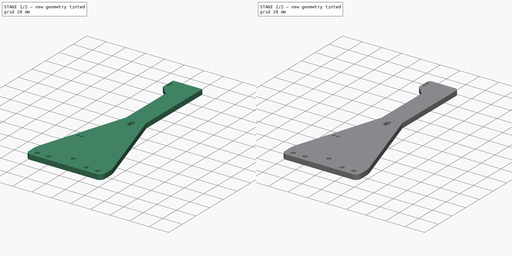
[diagram: build sequence overview — one tinted view per stage of 2, left to right]
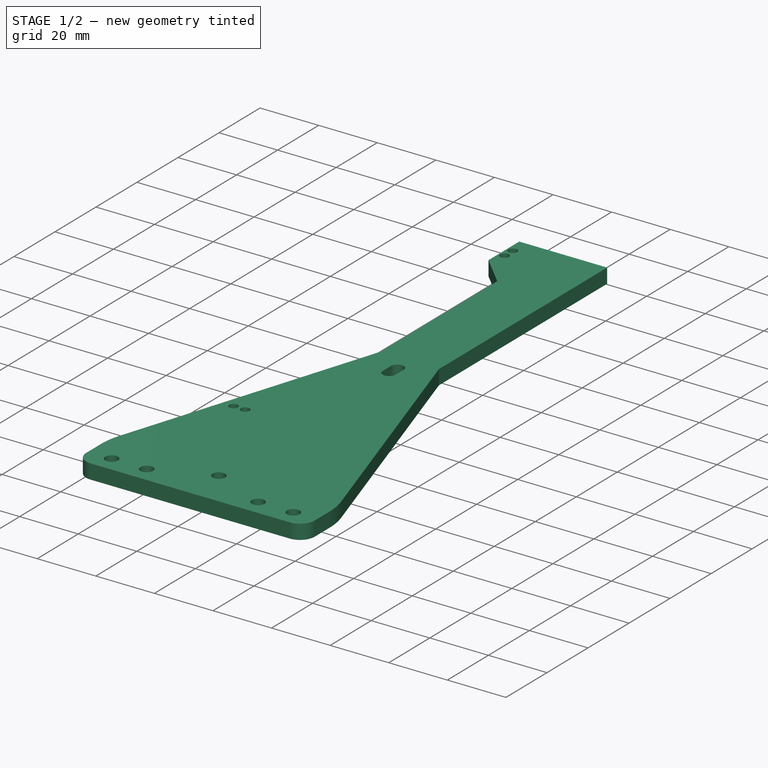
[diagram: stage 1 of 2 — iso view after this stage's code; geometry added in this stage tinted green]
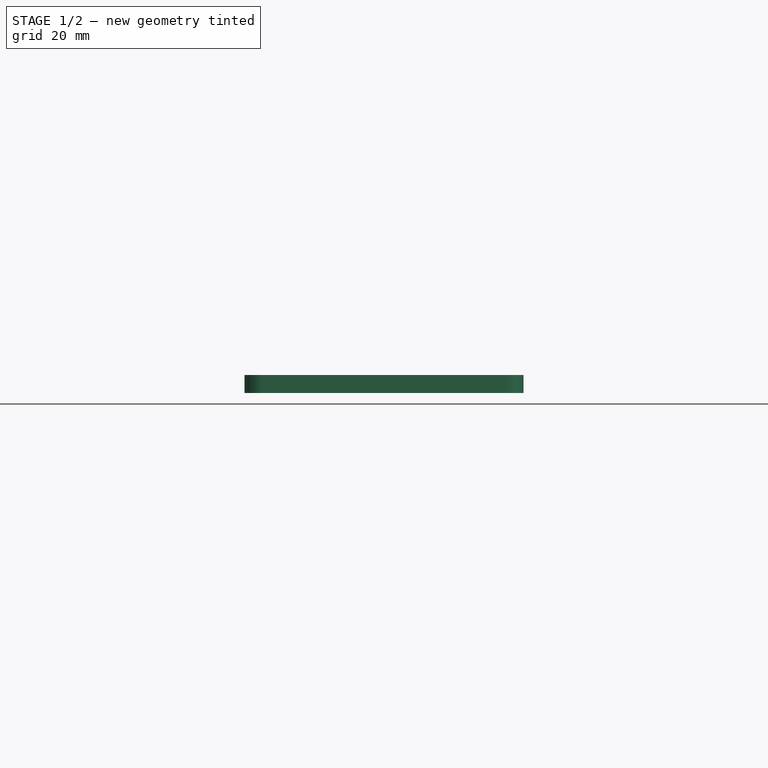
[diagram: stage 1 of 2 — front view after this stage's code; geometry added in this stage tinted green]
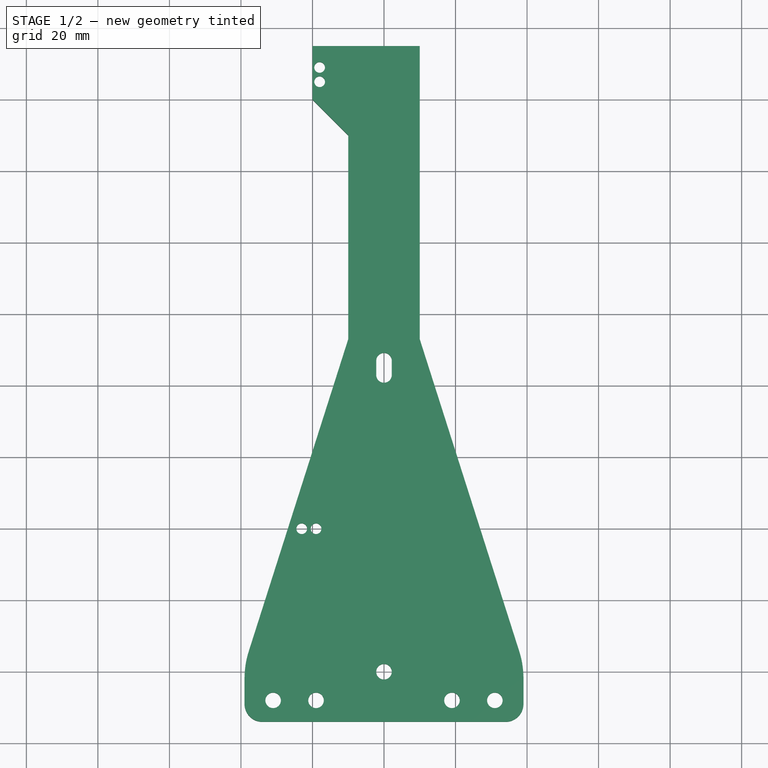
[diagram: stage 1 of 2 — top view after this stage's code; geometry added in this stage tinted green]
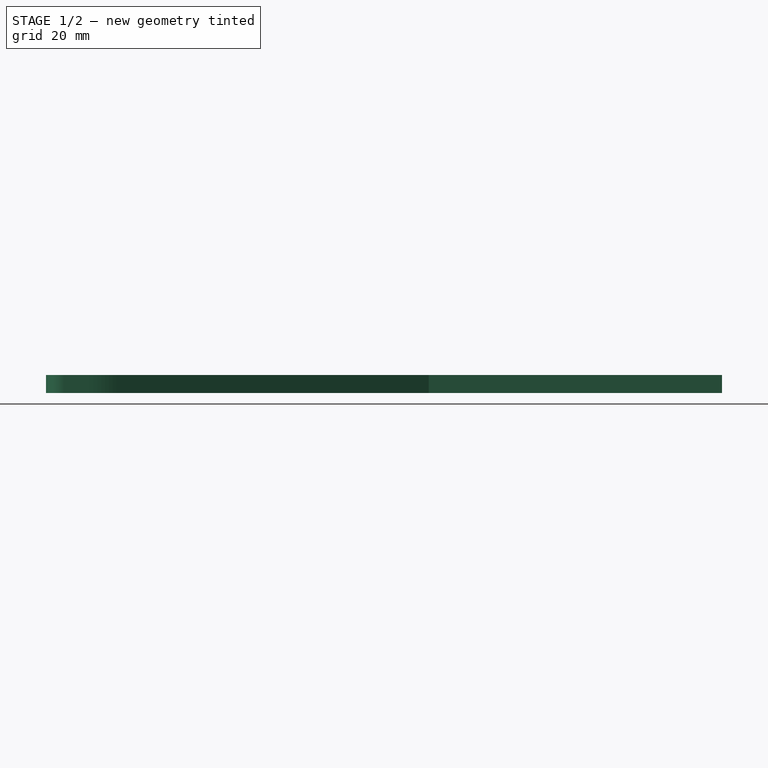
[diagram: stage 1 of 2 — right view after this stage's code; geometry added in this stage tinted green]
FCSTD DOCUMENT  (FreeCAD 1.1R42987 (Git))
Label: SlidesPlate
License: All rights reserved
LicenseURL: https://en.wikipedia.org/wiki/All_rights_reserved
objects: App::Point×1, Sketcher::SketchObject×1, PartDesign::Pad×1, PartDesign::Fillet×1, PartDesign::Body×1
note: 9 computed .brp shape members not serialized (recipe doc carries the construction recipe); baked Part::Feature solids carry a one-line shape summary decoded from their .brp
EXTERNAL_REF file=../Variables.FCStd obj=Spreadsheet

FEATURE [App::Point] Origin001
  Role = Origin
FEATURE [Sketcher::SketchObject] Sketch
  ArcFitTolerance = 1e-06
  AttachmentSupport = -> [XY_Plane]
  ExternalTypes = [0]
  FullyConstrained = true
  MakeInternals = false
  MapMode = 5
  expr: Constraints[10] = Variables#Spreadsheet.M4ThroughBoreDiam / 2
  expr: Constraints[18] = Variables#Spreadsheet.PassiveClawMountX
  expr: Constraints[23] = Variables#Spreadsheet.PassiveClawMountY
  expr: Constraints[24] = Variables#Spreadsheet.ClawHeight
  expr: Constraints[26] = Variables#Spreadsheet.PassiveClawMountOffset
  sketch-geometry (45):
    g0: LineSegment [constr] StartX=2.5e-15 StartY=7.48e-14 StartZ=0 EndX=-2.5e-15 EndY=85 EndZ=0
    g1: ArcOfCircle CenterX=-1.106e-13 CenterY=87 CenterZ=0 NormalX=0 NormalY=0 NormalZ=1 AngleXU=0 Radius=2.175 StartAngle=2.2e-15 EndAngle=3.14159
    g2: ArcOfCircle CenterX=3.214e-13 CenterY=83 CenterZ=0 NormalX=0 NormalY=0 NormalZ=1 AngleXU=0 Radius=2.175 StartAngle=3.14159 EndAngle=6.28319
    g3: LineSegment StartX=2.175 StartY=83 StartZ=0 EndX=2.175 EndY=87 EndZ=0
    g4: LineSegment StartX=-2.175 StartY=87 StartZ=0 EndX=-2.175 EndY=83 EndZ=0
    g5: Circle CenterX=2.5e-15 CenterY=7.48e-14 CenterZ=0 NormalX=0 NormalY=0 NormalZ=1 AngleXU=0 Radius=2.175
    g6: Circle CenterX=19 CenterY=-8 CenterZ=0 NormalX=0 NormalY=0 NormalZ=1 AngleXU=0 Radius=2.175
    g7: LineSegment [constr] StartX=19 StartY=-8 StartZ=0 EndX=31 EndY=-8 EndZ=0
    g8: Circle CenterX=31 CenterY=-8 CenterZ=0 NormalX=0 NormalY=0 NormalZ=1 AngleXU=0 Radius=2.175
    g9: GeomPoint X=25 Y=-14 Z=0
    g10: GeomPoint X=25 Y=-8 Z=0
    g11: GeomPoint X=25 Y=-25 Z=0
    g12: LineSegment StartX=-34 StartY=-14 StartZ=0 EndX=34 EndY=-14 EndZ=0
    g13: GeomPoint X=-1e-16 Y=-14 Z=0
    g14: LineSegment StartX=39 StartY=-9 StartZ=0 EndX=39 EndY=-1.88721 EndZ=0
    g15: GeomPoint X=1.9e-15 Y=93 Z=0
    g16: LineSegment StartX=10 StartY=93 StartZ=0 EndX=37.8197 EndY=5.70369 EndZ=0
    g17: LineSegment StartX=-39 StartY=-9 StartZ=0 EndX=-39 EndY=-1.88721 EndZ=0
    g18: LineSegment StartX=-37.8197 StartY=5.70369 StartZ=0 EndX=-10 EndY=93 EndZ=0
    g19: Circle CenterX=-19 CenterY=-8 CenterZ=0 NormalX=0 NormalY=0 NormalZ=1 AngleXU=0 Radius=2.175
    g20: Circle CenterX=-31 CenterY=-8 CenterZ=0 NormalX=0 NormalY=0 NormalZ=1 AngleXU=0 Radius=2.175
    g21: LineSegment [constr] StartX=-31 StartY=-8 StartZ=0 EndX=-19 EndY=-8 EndZ=0
    g22: LineSegment [constr] StartX=-19 StartY=-8 StartZ=0 EndX=19 EndY=-8 EndZ=0
    g23: GeomPoint [constr] X=3e-15 Y=-8 Z=0
    g24: ArcOfCircle CenterX=-34 CenterY=-9 CenterZ=0 NormalX=0 NormalY=0 NormalZ=1 AngleXU=0 Radius=5 StartAngle=3.14159 EndAngle=4.71239
    g25: GeomPoint [constr] X=-39 Y=-14 Z=0
    g26: ArcOfCircle CenterX=34 CenterY=-9 CenterZ=0 NormalX=0 NormalY=0 NormalZ=1 AngleXU=0 Radius=5 StartAngle=4.71239 EndAngle=6.28319
    g27: GeomPoint [constr] X=39 Y=-14 Z=0
    g28: ArcOfCircle CenterX=-14 CenterY=-1.88721 CenterZ=0 NormalX=0 NormalY=0 NormalZ=1 AngleXU=0 Radius=25 StartAngle=2.83309 EndAngle=3.14159
    g29: GeomPoint [constr] X=-39 Y=2 Z=0
    g30: ArcOfCircle CenterX=14 CenterY=-1.88721 CenterZ=0 NormalX=0 NormalY=0 NormalZ=1 AngleXU=0 Radius=25 StartAngle=4.72e-14 EndAngle=0.308506
    g31: GeomPoint [constr] X=39 Y=2 Z=0
    g32: Circle CenterX=-19 CenterY=40 CenterZ=0 NormalX=0 NormalY=0 NormalZ=1 AngleXU=0 Radius=1.5
    g33: Circle CenterX=-23 CenterY=40 CenterZ=0 NormalX=0 NormalY=0 NormalZ=1 AngleXU=0 Radius=1.5
    g34: LineSegment [constr] StartX=-23 StartY=40 StartZ=0 EndX=-19 EndY=40 EndZ=0
    g35: LineSegment StartX=10 StartY=93 StartZ=0 EndX=10 EndY=175 EndZ=0
    g36: LineSegment StartX=-10 StartY=93 StartZ=0 EndX=-10 EndY=150 EndZ=0
    g37: LineSegment StartX=-10 StartY=175 StartZ=0 EndX=10 EndY=175 EndZ=0
    g38: LineSegment [constr] StartX=2.5e-15 StartY=7.48e-14 StartZ=0 EndX=-7.6e-15 EndY=170 EndZ=0
    g39: LineSegment [constr] StartX=-18 StartY=165 StartZ=0 EndX=-18 EndY=169 EndZ=0
    g40: Circle CenterX=-18 CenterY=165 CenterZ=0 NormalX=0 NormalY=0 NormalZ=1 AngleXU=0 Radius=1.5
    g41: Circle CenterX=-18 CenterY=169 CenterZ=0 NormalX=0 NormalY=0 NormalZ=1 AngleXU=0 Radius=1.5
    g42: LineSegment StartX=-10 StartY=175 StartZ=0 EndX=-20 EndY=175 EndZ=0
    g43: LineSegment StartX=-20 StartY=175 StartZ=0 EndX=-20 EndY=160 EndZ=0
    g44: LineSegment StartX=-20 StartY=160 StartZ=0 EndX=-10 EndY=150 EndZ=0
  constraints (108):
    c: Coincident(g0,g-1)
    c: PointOnObject(g0,g-2)
    c: PointOnObject(g1,g0)
    c: Vertical(g3)
    c: Tangent(g3,g1) = -1.5708
    c: Tangent(g4,g1) = -1.5708
    c: Coincident(g3,g2)
    c: Tangent(g4,g2) = -1.5708
    c: Equal(g2,g1)
    c: DistanceY(g2,g1) = 4
    c: Radius(g1) = 2.175
    c: Symmetric(g1,g2,g0)
    c: DistanceY(g0,g0) = 85
    c: Coincident(g5,g0)
    c: Equal(g5,g2)
    c: Equal(g5,g6)
    c: Coincident(g7,g6)
    c: Horizontal(g7)
    c: DistanceX(g7,g7) = 12
    c: Coincident(g8,g7)
    c: Equal(g6,g8)
    c: Symmetric(g7,g7,g10)
    c: Vertical(g9,g10)
    c: Distance(g9,g7) = 6
    c: DistanceY(g11,g9) = 11
    c: Vertical(g11,g9)
    c: DistanceY(g11,g-1) = 25
    c: DistanceX(g-1,g11) = 25
    c: Horizontal(g12)
    c: Symmetric(g25,g27,g13)
    c: PointOnObject(g13,g-2)
    c: DistanceX(g7,g27) = 8
    c: Vertical(g14)
    c: DistanceY(g7,g31) = 10
    c: DistanceX(g18,g16) = 20
    c: Symmetric(g18,g16,g15)
    c: PointOnObject(g15,g-2)
    c: Vertical(g17)
    c: Horizontal(g20,g19)
    c: Equal(g19,g6)
    c: Equal(g19,g20)
    c: Coincident(g21,g20)
    c: Coincident(g21,g19)
    c: Horizontal(g19,g6)
    c: Equal(g7,g21)
    c: Coincident(g22,g19)
    c: Coincident(g22,g6)
    c: Symmetric(g22,g22,g23)
    c: PointOnObject(g23,g0)
    c: PointOnObject(g25,g17)
    c: PointOnObject(g25,g12)
    c: Tangent(g17,g24) = 1.5708
    c: Tangent(g12,g24) = -1.5708
    c: PointOnObject(g27,g12)
    c: PointOnObject(g27,g14)
    c: Tangent(g12,g26) = -1.5708
    c: Tangent(g14,g26) = -1.5708
    c: PointOnObject(g29,g17)
    c: PointOnObject(g29,g18)
    c: Tangent(g17,g28) = 1.5708
    c: Tangent(g18,g28) = 1.5708
    c: PointOnObject(g31,g16)
    c: PointOnObject(g31,g14)
    c: Tangent(g16,g30) = 1.5708
    c: Tangent(g14,g30) = -1.5708
    c: Radius(g24) = 5
    c: Equal(g24,g26)
    c: Radius(g28) = 25
    c: Equal(g28,g30)
    c: Horizontal(g28,g30)
    c: Distance(g6,g12) = 6
    c: DistanceX(g29,g32) = 20
    c: Distance(g32,g-1) = 40
    c: Diameter(g32) = 3
    c: Equal(g33,g32)
    c: Horizontal(g33,g32)
    c: Coincident(g34,g33)
    c: Coincident(g34,g32)
    c: DistanceX(g34,g34) = 4
    c: Coincident(g35,g16)
    c: Vertical(g35)
    c: Coincident(g36,g18)
    c: Coincident(g37,g35)
    c: Horizontal(g37)
    c: Horizontal(g18,g16)
    c: DistanceY(g0,g15) = 8
    c: Coincident(g38,g0)
    c: Symmetric(g38,g0,g0)
    c: Distance(g38,g37) = 5
    c: Diameter(g40) = 3
    c: Coincident(g40,g39)
    c: Coincident(g41,g39)
    c: Equal(g41,g40)
    c: Distance(g39,g37) = 6
    c: Distance(g39,g39) = 4
    c: Vertical(g39)
    c: Horizontal(g42)
    c: Coincident(g43,g42)
    c: Vertical(g43)
    c: Coincident(g44,g43)
    c: Angle(g44,g43) = 2.35619
    c: DistanceX(g42,g42) = 10
    c: DistanceY(g43,g43) = 15
    c: Vertical(g36)
    c: Coincident(g44,g36)
    c: Distance(g39,g43) = 2
    c: Coincident(g42,g37)
    c: Vertical(g36,g37)
FEATURE [PartDesign::Pad] Pad
  Direction = (0,0,1)
  Length = 5
  Length2 = 10
  Profile = -> Sketch
  ReferenceAxis = -> Sketch [N_Axis]
  Refine = true
  Suppressed = false
  Type = 0
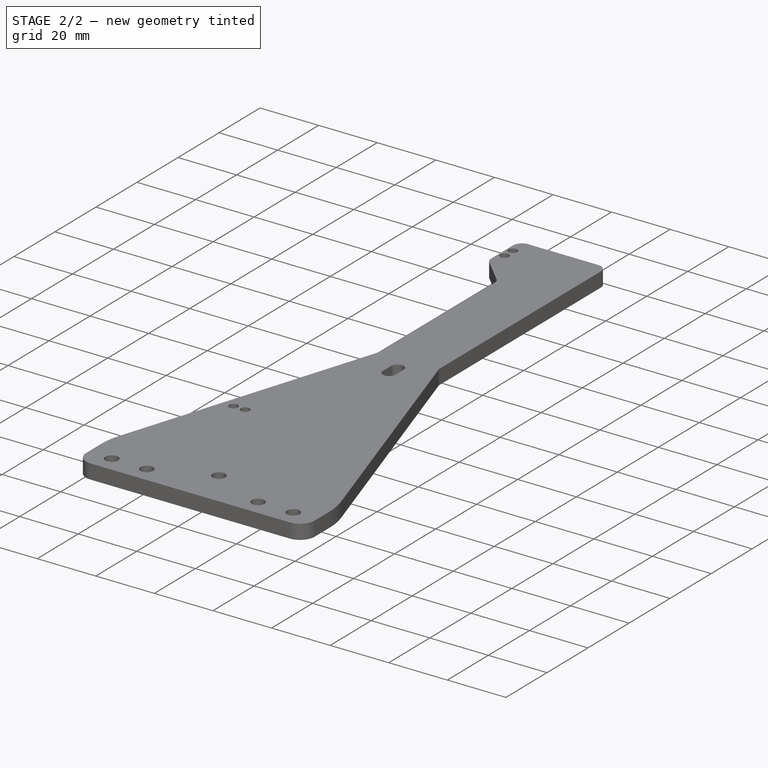
[diagram: stage 2 of 2 — iso view after this stage's code; geometry added in this stage tinted green]
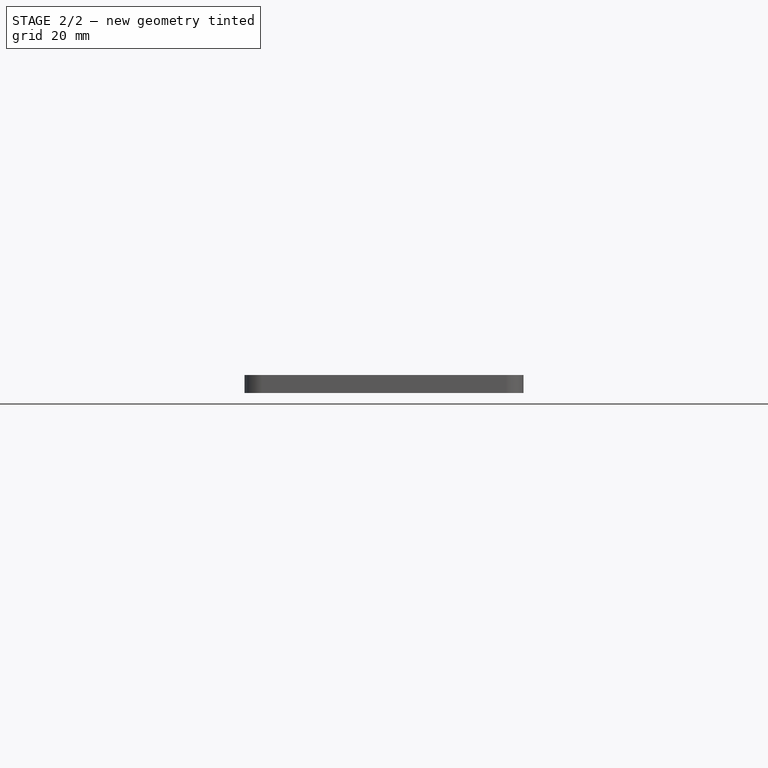
[diagram: stage 2 of 2 — front view after this stage's code; geometry added in this stage tinted green]
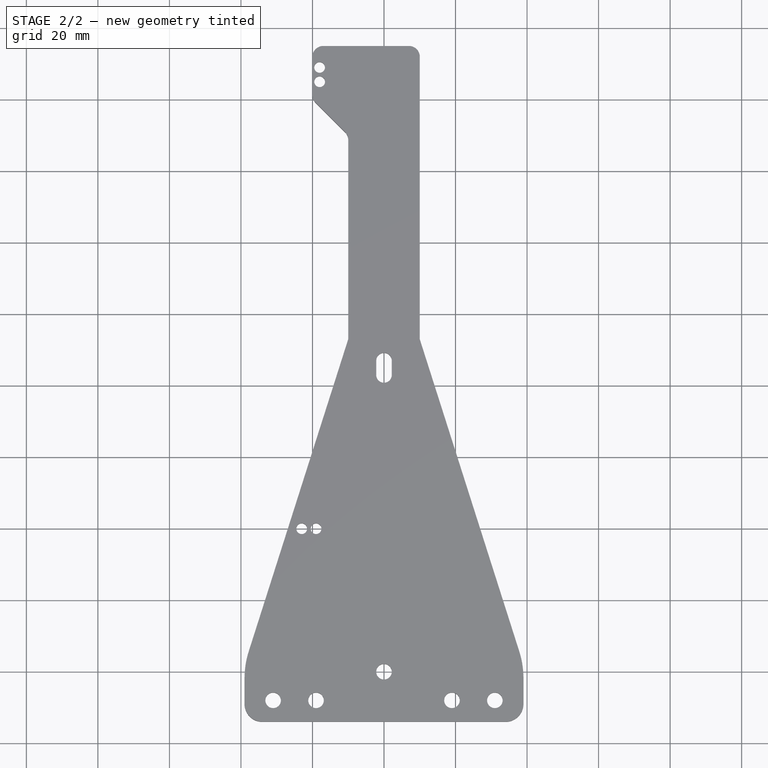
[diagram: stage 2 of 2 — top view after this stage's code; geometry added in this stage tinted green]
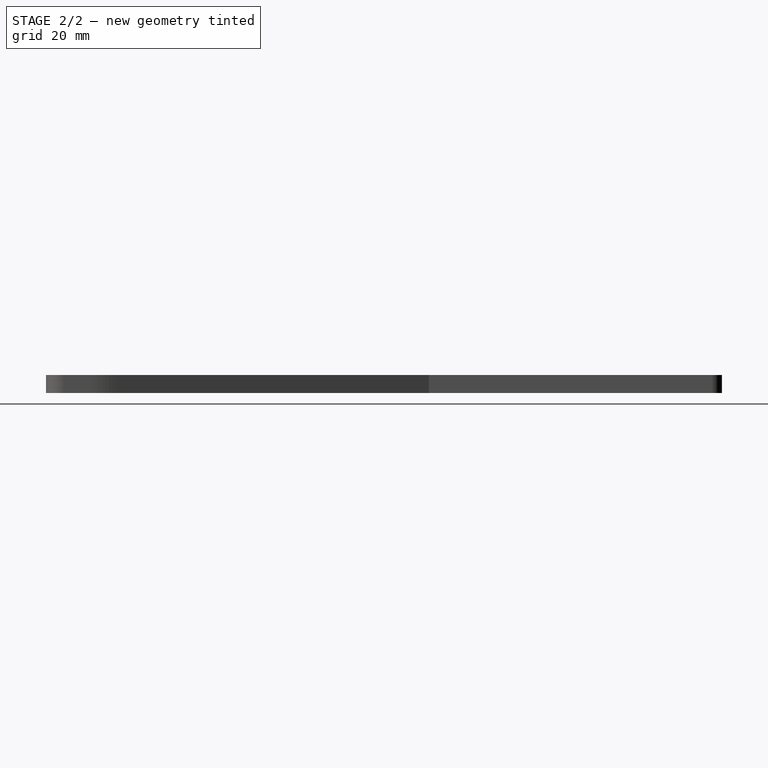
[diagram: stage 2 of 2 — right view after this stage's code; geometry added in this stage tinted green]
FEATURE [PartDesign::Fillet] Fillet
  Base = -> Pad [Edge26,Edge20,Edge30,Edge27]
  BaseFeature = -> Pad
  Radius = 3
  Refine = true
  SupportTransform = false
  Suppressed = false
  UseAllEdges = false
FEATURE [PartDesign::Body] Body  label="Slides Plate"
  AllowCompound = true
  Group = -> [Sketch,Pad,Fillet]
  Origin = -> Origin
  Tip = -> Fillet
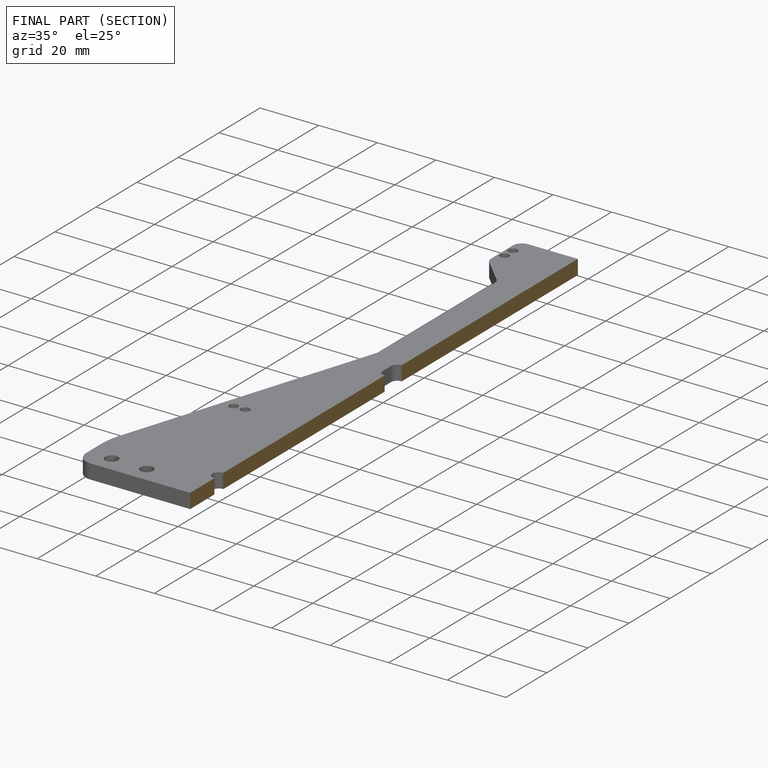
[diagram: finished part — half-section view (interior)]
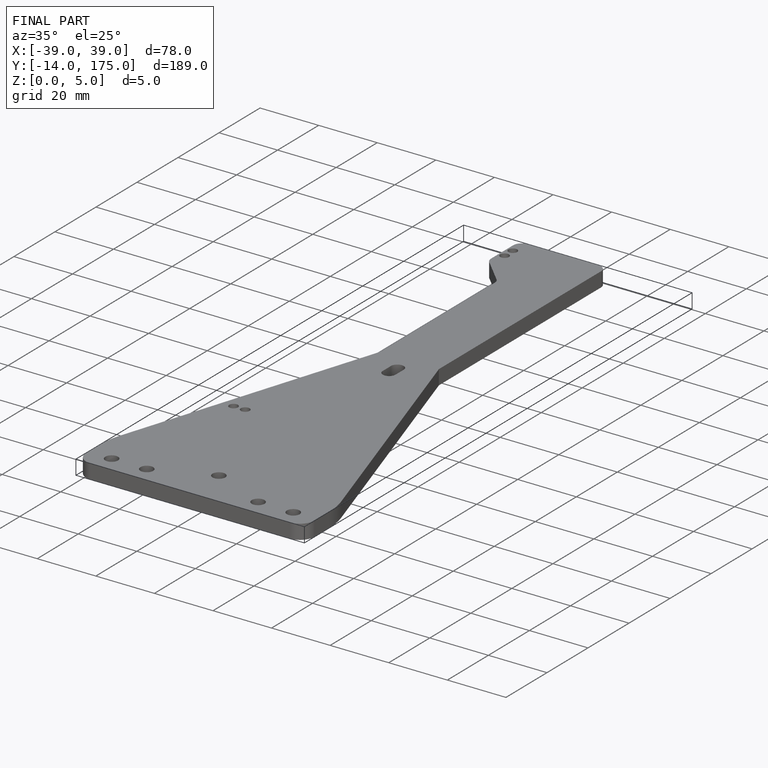
[diagram: finished part — iso view with bounding-box wireframe]
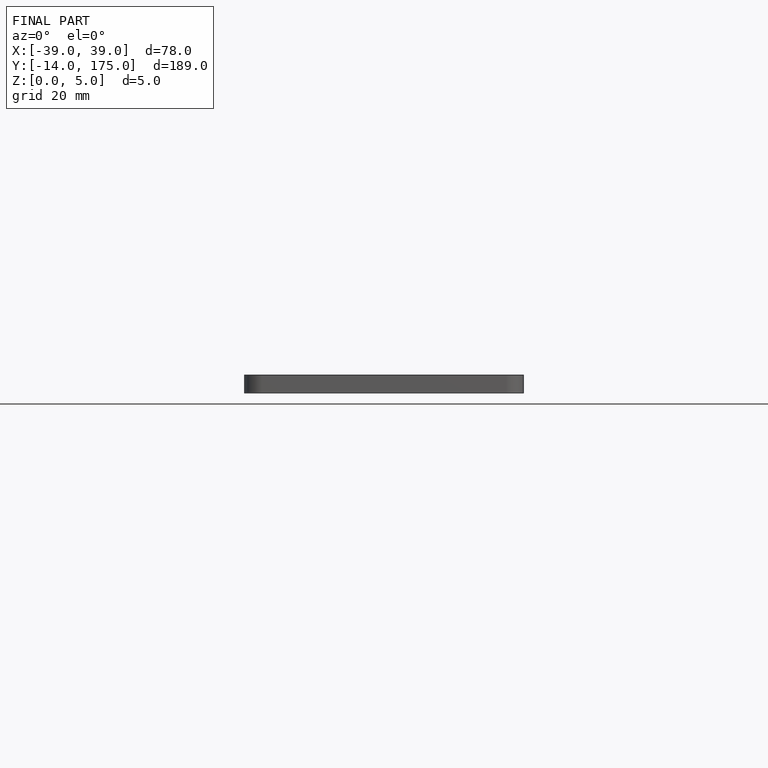
[diagram: finished part — front view with bounding-box wireframe]
